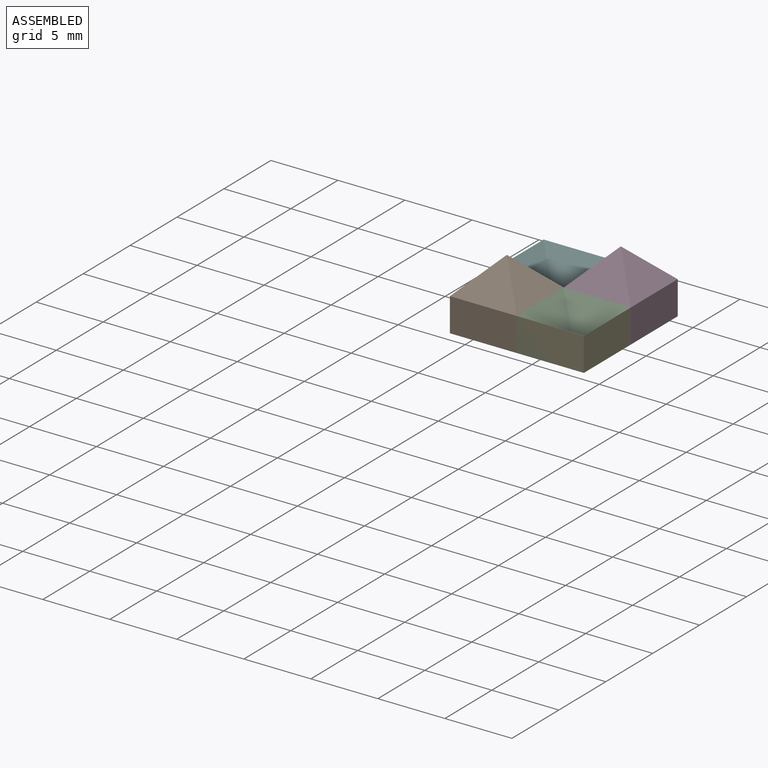
[diagram: assembled view]
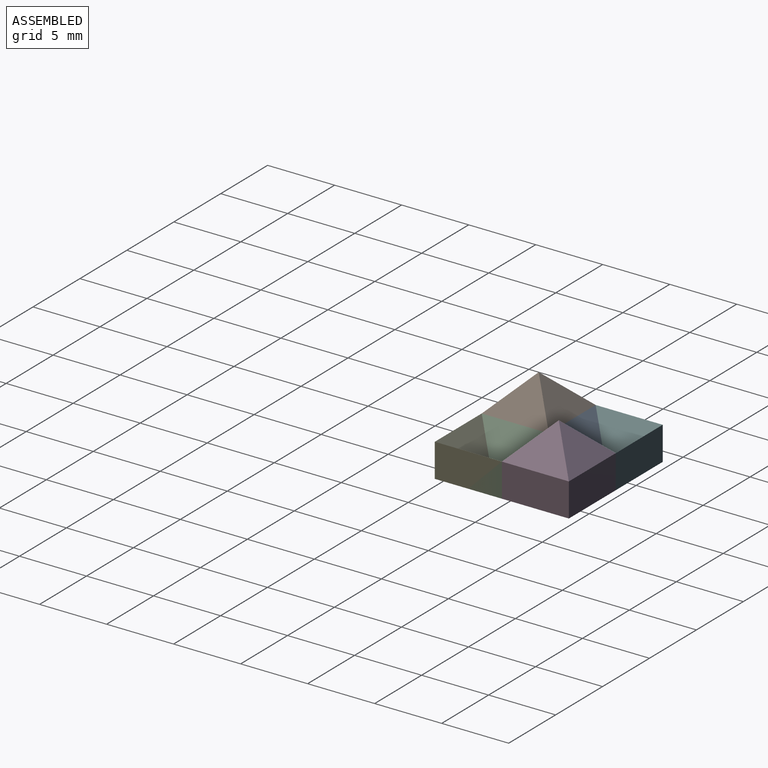
[diagram: assembled view, second angle]
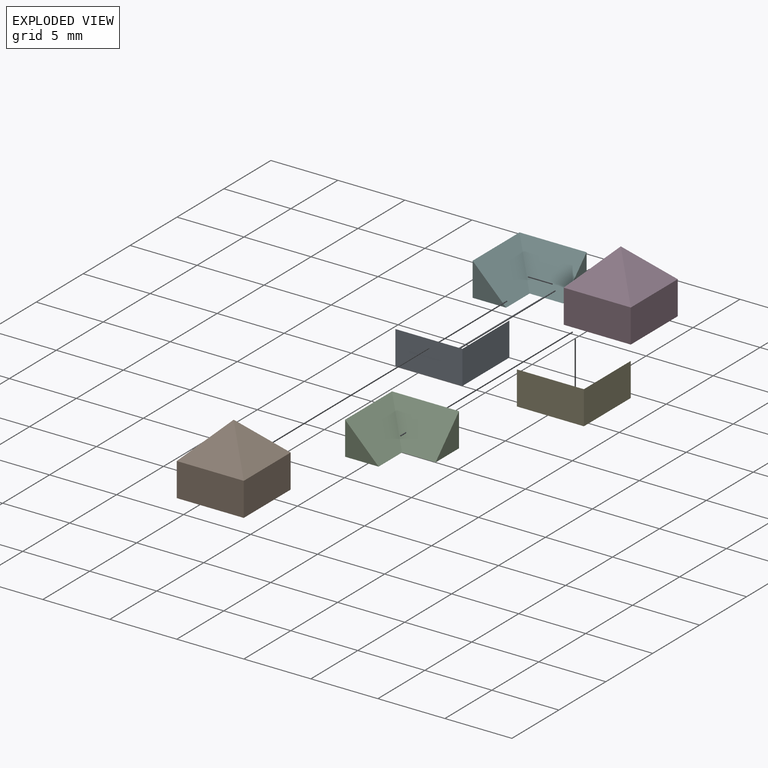
[diagram: exploded view]
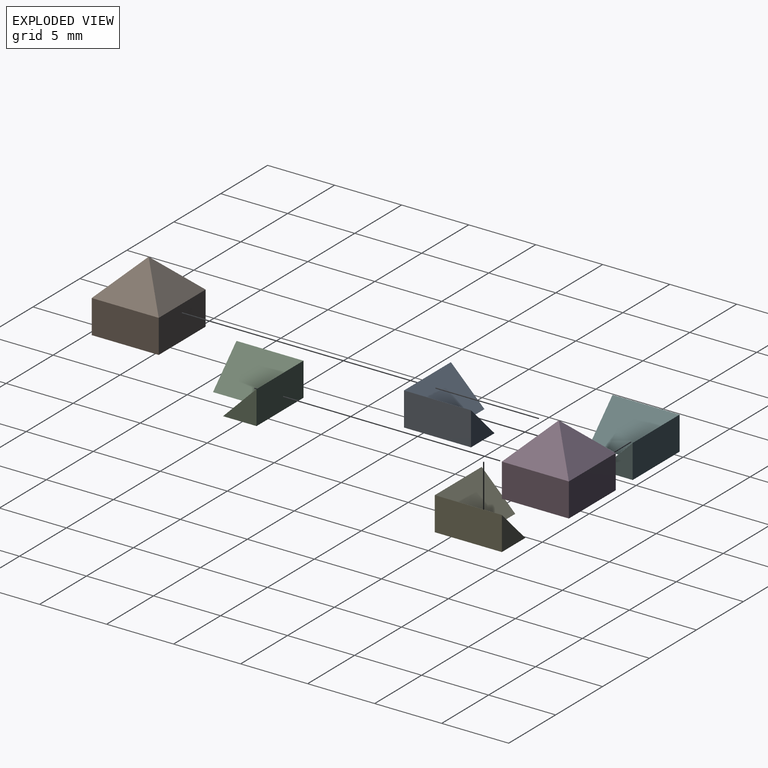
[diagram: exploded view, second angle]
ASSEMBLY  parts=6 mates=4
PART A: 7 faces, bbox 5x5x2.5 mm
  f0: plane 2.5x2.5mm, normal (0,1,0), area 3.1mm2, adj f2,f3,f4
  f1: plane 5x2.5mm, normal (0,-1,0), area 12.5mm2, adj f2,f3,f5,f6
  f2: plane 5x2.5mm, normal (1,0,0), area 12.5mm2, adj f0,f1,f3,f4
  f3: plane 5x5mm, normal (0,0,-1), area 18.8mm2, adj f0,f1,f2,f4,f5,f6
  f4: plane 5x2.5mm, normal (-0.71,0,0.71), area 13.3mm2, adj f0,f2,f3,f5
  f5: plane 5x2.5mm, normal (0,0.71,0.71), area 13.3mm2, adj f1,f3,f4,f6
  f6: plane 2.5x2.5mm, normal (-1,0,0), area 3.1mm2, adj f1,f3,f5
PART B: 9 faces, bbox 5x5x5 mm
  f0: plane 5x2.5mm, normal (0,1,0), area 12.5mm2, adj f4,f5,f6,f8
  f1: plane 5x2.5mm, normal (0,-1,0), area 12.5mm2, adj f4,f5,f6,f7
  f2: plane 5x2.5mm, normal (0.71,0,0.71), area 8.8mm2, adj f4,f7,f8
  f3: plane 5x2.5mm, normal (-0.71,0,0.71), area 8.8mm2, adj f5,f7,f8
  f4: plane 5x2.5mm, normal (1,0,0), area 12.5mm2, adj f0,f1,f2,f6
  f5: plane 5x2.5mm, normal (-1,0,0), area 12.5mm2, adj f0,f1,f3,f6
  f6: plane 5x5mm, normal (0,0,-1), area 25mm2, adj f0,f1,f4,f5
  f7: plane 5x2.5mm, normal (0,-0.71,0.71), area 8.8mm2, adj f1,f2,f3
  f8: plane 5x2.5mm, normal (0,0.71,0.71), area 8.8mm2, adj f0,f2,f3
PART C: 7 faces, bbox 5x5x2.5 mm
  f0: plane 5x2.5mm, normal (0.71,0,0.71), area 13.3mm2, adj f2,f3,f4,f5
  f1: plane 5x2.5mm, normal (0,1,0), area 12.5mm2, adj f3,f4,f5,f6
  f2: plane 2.5x2.5mm, normal (0,-1,0), area 3.1mm2, adj f0,f3,f5
  f3: plane 5x2.5mm, normal (-1,0,0), area 12.5mm2, adj f0,f1,f2,f5
  f4: plane 5x2.5mm, normal (0,-0.71,0.71), area 13.3mm2, adj f0,f1,f5,f6
  f5: plane 5x5mm, normal (0,0,-1), area 18.8mm2, adj f0,f1,f2,f3,f4,f6
  f6: plane 2.5x2.5mm, normal (1,0,0), area 3.1mm2, adj f1,f4,f5
PART D: same geometry as B
PART E: same geometry as A
PART F: same geometry as C
PLACE A t=(-9.5,-3.41,1.88)mm
PLACE B t=(-9.5,-8.41,1.88)mm
PLACE C t=(-4.5,-8.41,1.88)mm
PLACE D t=(-4.5,-3.41,1.88)mm
PLACE E t=(-4.5,-8.41,1.88)mm
PLACE F t=(-9.5,-3.41,1.88)mm
MATE fastened C.f1 <-> D.f1  axis (0,1,0) through (-4.5,-5.91,3.13)mm
MATE fastened D.f5 <-> A.f2  axis (-1,0,0) through (-7,-3.41,3.13)mm
MATE fastened B.f0 <-> A.f1  axis (0,1,0) through (-9.5,-5.91,3.13)mm
MATE fastened E.f3 <-> D.f6  axis (0,0,-1) through (-2,-5.91,1.88)mm
